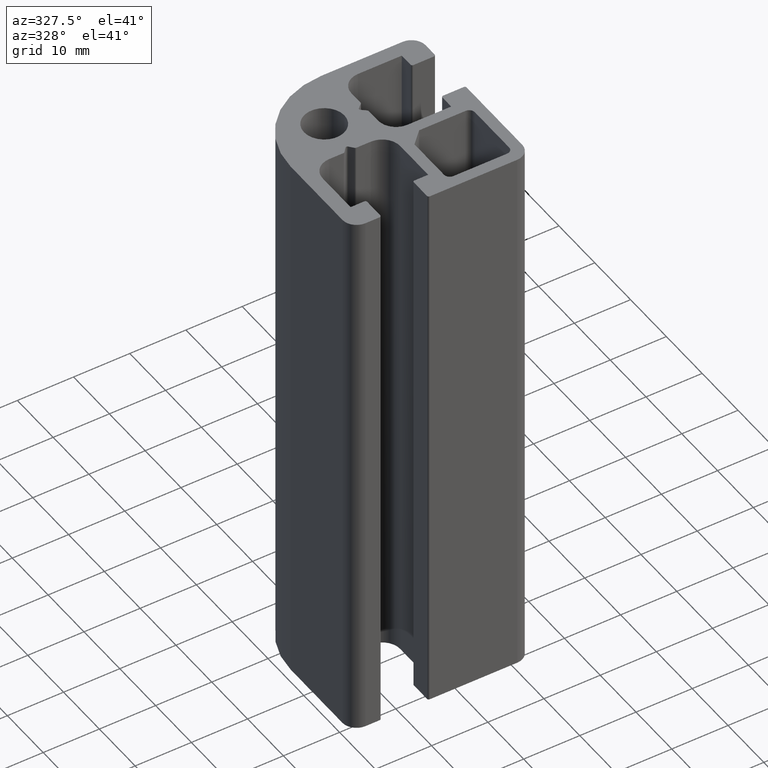
[diagram: clean part render]
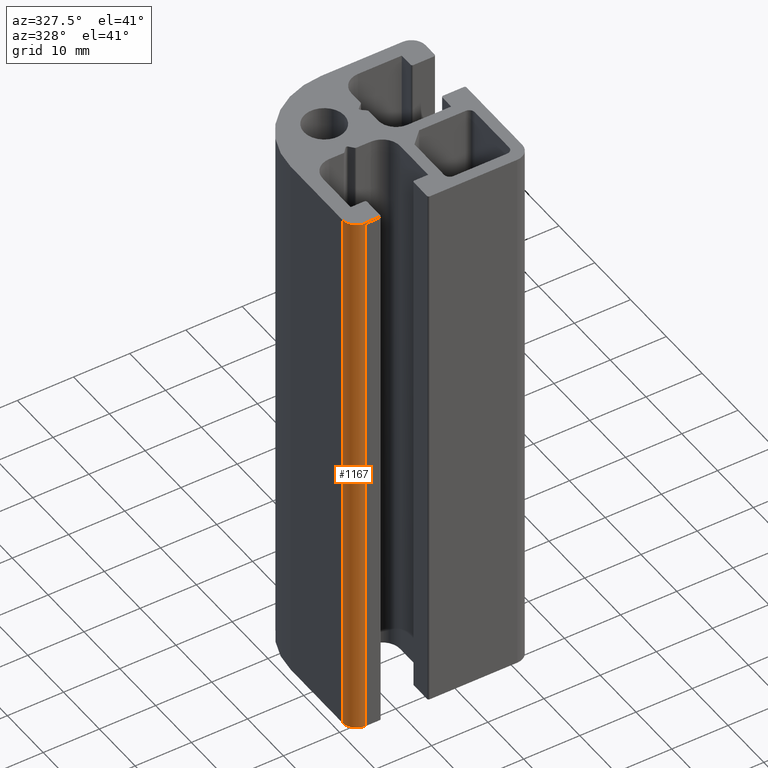
[diagram: same view with one face highlighted and labeled with its STEP entity id]
A machine part, auxiliary view. The second image highlights one B-rep face of the part: STEP entity #1167.
In plain terms, the highlighted cylindrical surface (edge-blend (fillet) strip) has radius 2.5 mm, axis along (0, 0, 1).
Its self-contained STEP definition (entity closure, byte-faithful):
#149=LINE('',#1929,#267);
#162=LINE('',#1960,#280);
#267=VECTOR('',#1579,100.);
#280=VECTOR('',#1610,100.);
#342=FACE_OUTER_BOUND('',#404,.T.);
#404=EDGE_LOOP('',(#1011,#1012,#1013,#1014));
#458=CIRCLE('',#1274,2.5);
#461=CIRCLE('',#1278,2.5);
#566=VERTEX_POINT('',#1926);
#567=VERTEX_POINT('',#1928);
#574=VERTEX_POINT('',#1950);
#576=VERTEX_POINT('',#1958);
#725=EDGE_CURVE('',#567,#566,#149,.T.);
#736=EDGE_CURVE('',#567,#574,#458,.T.);
#741=EDGE_CURVE('',#566,#576,#461,.T.);
#742=EDGE_CURVE('',#574,#576,#162,.T.);
#1011=ORIENTED_EDGE('',*,*,#741,.T.);
#1012=ORIENTED_EDGE('',*,*,#742,.F.);
#1013=ORIENTED_EDGE('',*,*,#736,.F.);
#1014=ORIENTED_EDGE('',*,*,#725,.T.);
#1111=CYLINDRICAL_SURFACE('',#1277,2.5);
#1167=ADVANCED_FACE('',(#342),#1111,.T.);
#1274=AXIS2_PLACEMENT_3D('',#1951,#1598,#1599);
#1277=AXIS2_PLACEMENT_3D('',#1957,#1606,#1607);
#1278=AXIS2_PLACEMENT_3D('',#1959,#1608,#1609);
#1579=DIRECTION('',(0.,0.,1.));
#1598=DIRECTION('center_axis',(0.,0.,-1.));
#1599=DIRECTION('ref_axis',(1.,0.,0.));
#1606=DIRECTION('center_axis',(0.,0.,1.));
#1607=DIRECTION('ref_axis',(1.,0.,0.));
#1608=DIRECTION('center_axis',(0.,0.,-1.));
#1609=DIRECTION('ref_axis',(1.,0.,0.));
#1610=DIRECTION('',(0.,0.,1.));
#1926=CARTESIAN_POINT('',(-7.,-22.5,100.));
#1928=CARTESIAN_POINT('',(-7.,-22.5,0.));
#1929=CARTESIAN_POINT('',(-7.,-22.5,0.));
#1950=CARTESIAN_POINT('',(-9.5,-20.,0.));
#1951=CARTESIAN_POINT('Origin',(-7.,-20.,0.));
#1957=CARTESIAN_POINT('Origin',(-7.,-20.,0.));
#1958=CARTESIAN_POINT('',(-9.5,-20.,100.));
#1959=CARTESIAN_POINT('Origin',(-7.,-20.,100.));
#1960=CARTESIAN_POINT('',(-9.5,-20.,0.));